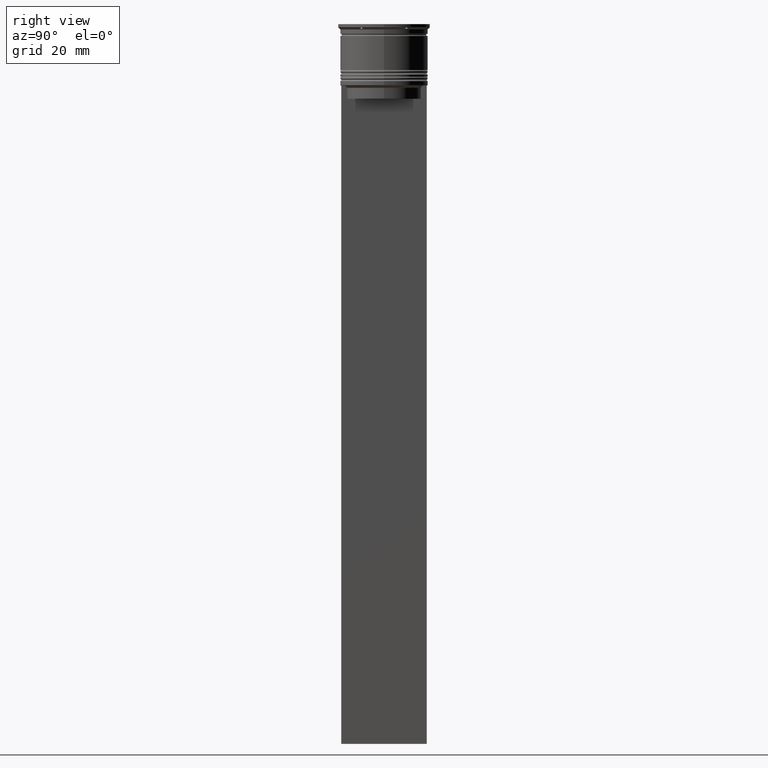
[diagram: clean part render]
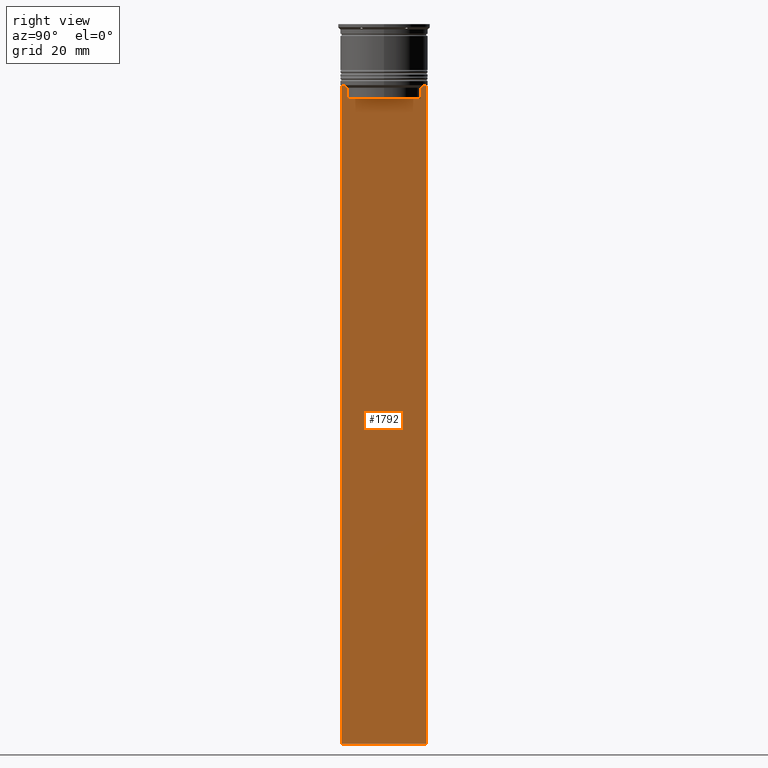
[diagram: same view with one face highlighted and labeled with its STEP entity id]
A machine part, right view. The second image highlights one B-rep face of the part: STEP entity #1792.
In plain terms, the highlighted planar face has unit normal (-1, 0, 0).
Its self-contained STEP definition (entity closure, byte-faithful):
#14 = CARTESIAN_POINT ( 'NONE',  ( 0.4999999999999998890, 8.385105843100616241, -14.50000000000000000 ) ) ;
#22 = ORIENTED_EDGE ( 'NONE', *, *, #139, .T. ) ;
#58 = B_SPLINE_CURVE_WITH_KNOTS ( 'NONE', 3,
 ( #1504, #968, #1977, #754 ),
 .UNSPECIFIED., .F., .F.,
 ( 4, 4 ),
 ( 0.03898465126933130243, 0.03969388910599658260 ),
 .UNSPECIFIED. ) ;
#72 = DIRECTION ( 'NONE',  ( -0.000000000000000000, -0.000000000000000000, 1.000000000000000000 ) ) ;
#75 = DIRECTION ( 'NONE',  ( 0.000000000000000000, 0.000000000000000000, -1.000000000000000000 ) ) ;
#111 = CARTESIAN_POINT ( 'NONE',  ( 0.4999999999999998890, -8.385105843100616241, 0.000000000000000000 ) ) ;
#139 = EDGE_CURVE ( 'NONE', #2452, #2165, #58, .T. ) ;
#152 = ORIENTED_EDGE ( 'NONE', *, *, #1526, .T. ) ;
#153 = LINE ( 'NONE', #167, #1100 ) ;
#167 = CARTESIAN_POINT ( 'NONE',  ( 0.4999999999999998890, -9.749999999999998224, -163.9999999999999716 ) ) ;
#207 = CARTESIAN_POINT ( 'NONE',  ( 0.4999999999999998890, 9.750000000000001776, -14.00000000000000178 ) ) ;
#224 = VERTEX_POINT ( 'NONE', #1558 ) ;
#229 = DIRECTION ( 'NONE',  ( 0.000000000000000000, 0.000000000000000000, -1.000000000000000000 ) ) ;
#262 = CARTESIAN_POINT ( 'NONE',  ( 0.4999999999999998890, -9.749999999999998224, 5.525624189766635830 ) ) ;
#293 = AXIS2_PLACEMENT_3D ( 'NONE', #262, #1291, #1266 ) ;
#299 = EDGE_CURVE ( 'NONE', #1215, #1828, #843, .T. ) ;
#366 = DIRECTION ( 'NONE',  ( 0.000000000000000000, -1.000000000000000000, 0.000000000000000000 ) ) ;
#382 = DIRECTION ( 'NONE',  ( 0.000000000000000000, 0.000000000000000000, -1.000000000000000000 ) ) ;
#406 = CARTESIAN_POINT ( 'NONE',  ( 0.4999999999999998890, 8.385105843100616241, 0.000000000000000000 ) ) ;
#435 = VERTEX_POINT ( 'NONE', #1160 ) ;
#441 = EDGE_CURVE ( 'NONE', #1828, #2058, #153, .T. ) ;
#477 = CARTESIAN_POINT ( 'NONE',  ( 0.4999999999999998890, 9.750000000000001776, -163.9999999999999716 ) ) ;
#501 = PLANE ( 'NONE',  #293 ) ;
#512 = ORIENTED_EDGE ( 'NONE', *, *, #1448, .T. ) ;
#582 = EDGE_CURVE ( 'NONE', #224, #2031, #1005, .T. ) ;
#593 = ORIENTED_EDGE ( 'NONE', *, *, #582, .T. ) ;
#652 = EDGE_CURVE ( 'NONE', #435, #2452, #857, .T. ) ;
#653 = ORIENTED_EDGE ( 'NONE', *, *, #1925, .T. ) ;
#685 = VECTOR ( 'NONE', #72, 1000.000000000000000 ) ;
#702 = VECTOR ( 'NONE', #760, 1000.000000000000000 ) ;
#715 = ORIENTED_EDGE ( 'NONE', *, *, #1011, .F. ) ;
#754 = CARTESIAN_POINT ( 'NONE',  ( 0.4999999999999998890, -8.885943956609230199, -14.00000000000000178 ) ) ;
#760 = DIRECTION ( 'NONE',  ( 0.000000000000000000, -1.000000000000000000, 0.000000000000000000 ) ) ;
#789 = CARTESIAN_POINT ( 'NONE',  ( 0.4999999999999998890, -9.749999999999998224, -14.00000000000000178 ) ) ;
#796 = LINE ( 'NONE', #1152, #1753 ) ;
#843 = LINE ( 'NONE', #1056, #2235 ) ;
#857 = LINE ( 'NONE', #111, #685 ) ;
#960 = LINE ( 'NONE', #1550, #2071 ) ;
#968 = CARTESIAN_POINT ( 'NONE',  ( 0.4999999999999998890, -8.552060194457768105, -14.33334167772667556 ) ) ;
#995 = CARTESIAN_POINT ( 'NONE',  ( 0.4999999999999998890, 8.719005771582347464, -14.16667453442325453 ) ) ;
#1005 = LINE ( 'NONE', #406, #1058 ) ;
#1011 = EDGE_CURVE ( 'NONE', #2478, #2058, #1182, .T. ) ;
#1056 = CARTESIAN_POINT ( 'NONE',  ( 0.4999999999999998890, -9.749999999999998224, 5.525624189766635830 ) ) ;
#1058 = VECTOR ( 'NONE', #382, 1000.000000000000000 ) ;
#1100 = VECTOR ( 'NONE', #1540, 1000.000000000000000 ) ;
#1127 = CARTESIAN_POINT ( 'NONE',  ( 0.4999999999999998890, -9.749999999999998224, -14.00000000000000178 ) ) ;
#1152 = CARTESIAN_POINT ( 'NONE',  ( 0.4999999999999998890, 8.400000000000003908, -17.00000000000000000 ) ) ;
#1160 = CARTESIAN_POINT ( 'NONE',  ( 0.4999999999999998890, -8.385105843100616241, -17.00000000000000000 ) ) ;
#1182 = LINE ( 'NONE', #1766, #2487 ) ;
#1215 = VERTEX_POINT ( 'NONE', #1127 ) ;
#1222 = ORIENTED_EDGE ( 'NONE', *, *, #652, .T. ) ;
#1266 = DIRECTION ( 'NONE',  ( 0.000000000000000000, 0.000000000000000000, 1.000000000000000000 ) ) ;
#1291 = DIRECTION ( 'NONE',  ( -1.000000000000000000, 0.000000000000000000, 0.000000000000000000 ) ) ;
#1328 = ORIENTED_EDGE ( 'NONE', *, *, #1703, .T. ) ;
#1352 = ORIENTED_EDGE ( 'NONE', *, *, #441, .T. ) ;
#1448 = EDGE_CURVE ( 'NONE', #2031, #435, #796, .T. ) ;
#1504 = CARTESIAN_POINT ( 'NONE',  ( 0.4999999999999998890, -8.385105843100616241, -14.50000000000000000 ) ) ;
#1526 = EDGE_CURVE ( 'NONE', #2478, #1820, #960, .T. ) ;
#1540 = DIRECTION ( 'NONE',  ( 0.000000000000000000, 1.000000000000000000, 0.000000000000000000 ) ) ;
#1550 = CARTESIAN_POINT ( 'NONE',  ( 0.4999999999999998890, -9.749999999999998224, -14.00000000000000178 ) ) ;
#1558 = CARTESIAN_POINT ( 'NONE',  ( 0.4999999999999998890, 8.385105843100616241, -14.50000000000000000 ) ) ;
#1652 = FACE_OUTER_BOUND ( 'NONE', #2001, .T. ) ;
#1662 = CARTESIAN_POINT ( 'NONE',  ( 0.4999999999999998890, 8.885943956609230199, -14.00000000000000178 ) ) ;
#1703 = EDGE_CURVE ( 'NONE', #1820, #224, #2079, .T. ) ;
#1753 = VECTOR ( 'NONE', #366, 1000.000000000000000 ) ;
#1766 = CARTESIAN_POINT ( 'NONE',  ( 0.4999999999999998890, 9.750000000000001776, 5.525624189766635830 ) ) ;
#1779 = LINE ( 'NONE', #789, #702 ) ;
#1788 = CARTESIAN_POINT ( 'NONE',  ( 0.4999999999999998890, 8.552060201981378285, -14.33334167021640582 ) ) ;
#1792 = ADVANCED_FACE ( 'NONE', ( #1652 ), #501, .F. ) ;
#1820 = VERTEX_POINT ( 'NONE', #1662 ) ;
#1828 = VERTEX_POINT ( 'NONE', #2121 ) ;
#1912 = DIRECTION ( 'NONE',  ( 0.000000000000000000, -1.000000000000000000, 0.000000000000000000 ) ) ;
#1925 = EDGE_CURVE ( 'NONE', #2165, #1215, #1779, .T. ) ;
#1977 = CARTESIAN_POINT ( 'NONE',  ( 0.4999999999999998890, -8.719005764482787413, -14.16667454151160044 ) ) ;
#1994 = CARTESIAN_POINT ( 'NONE',  ( 0.4999999999999998890, 8.885943956609230199, -14.00000000000000178 ) ) ;
#2001 = EDGE_LOOP ( 'NONE', ( #152, #1328, #593, #512, #1222, #22, #653, #2331, #1352, #715 ) ) ;
#2031 = VERTEX_POINT ( 'NONE', #2097 ) ;
#2058 = VERTEX_POINT ( 'NONE', #477 ) ;
#2071 = VECTOR ( 'NONE', #1912, 1000.000000000000000 ) ;
#2079 = B_SPLINE_CURVE_WITH_KNOTS ( 'NONE', 3,
 ( #1994, #995, #1788, #14 ),
 .UNSPECIFIED., .F., .F.,
 ( 4, 4 ),
 ( 0.01511546479386908018, 0.01582316445439079997 ),
 .UNSPECIFIED. ) ;
#2097 = CARTESIAN_POINT ( 'NONE',  ( 0.4999999999999998890, 8.385105843100616241, -17.00000000000000000 ) ) ;
#2121 = CARTESIAN_POINT ( 'NONE',  ( 0.4999999999999998890, -9.749999999999998224, -163.9999999999999716 ) ) ;
#2165 = VERTEX_POINT ( 'NONE', #2368 ) ;
#2224 = CARTESIAN_POINT ( 'NONE',  ( 0.4999999999999998890, -8.385105843100616241, -14.50000000000000000 ) ) ;
#2235 = VECTOR ( 'NONE', #75, 1000.000000000000000 ) ;
#2331 = ORIENTED_EDGE ( 'NONE', *, *, #299, .T. ) ;
#2368 = CARTESIAN_POINT ( 'NONE',  ( 0.4999999999999998890, -8.885943956609230199, -14.00000000000000178 ) ) ;
#2452 = VERTEX_POINT ( 'NONE', #2224 ) ;
#2478 = VERTEX_POINT ( 'NONE', #207 ) ;
#2487 = VECTOR ( 'NONE', #229, 1000.000000000000000 ) ;